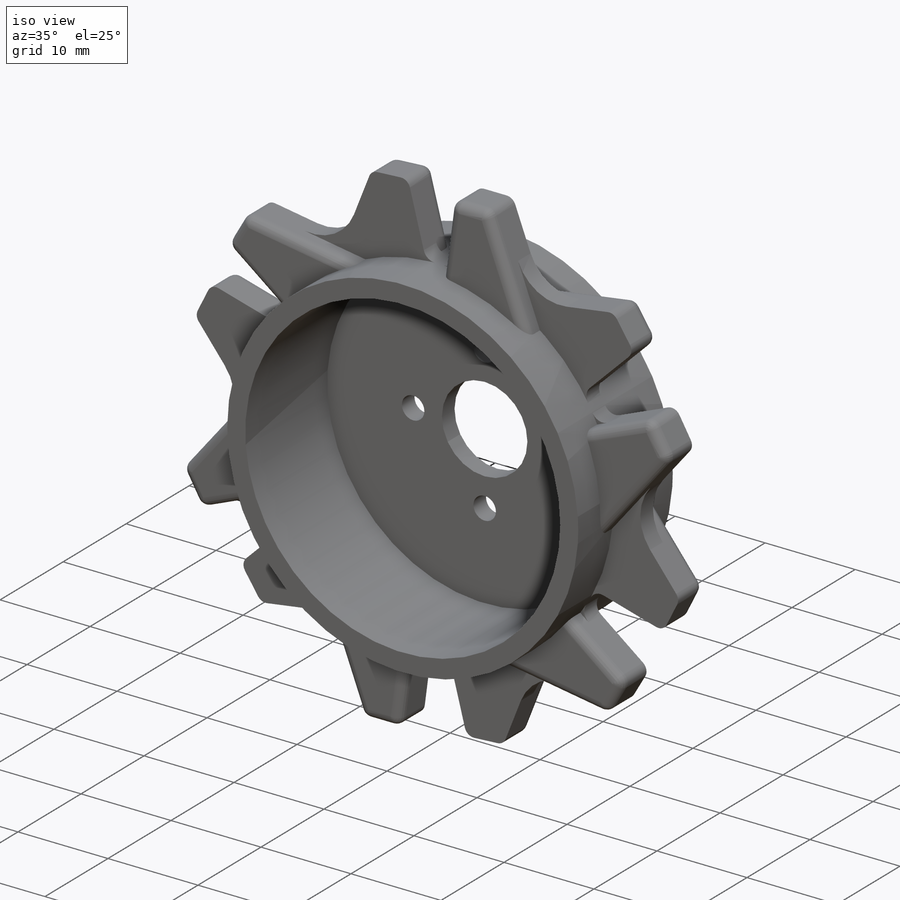
[diagram: iso view]
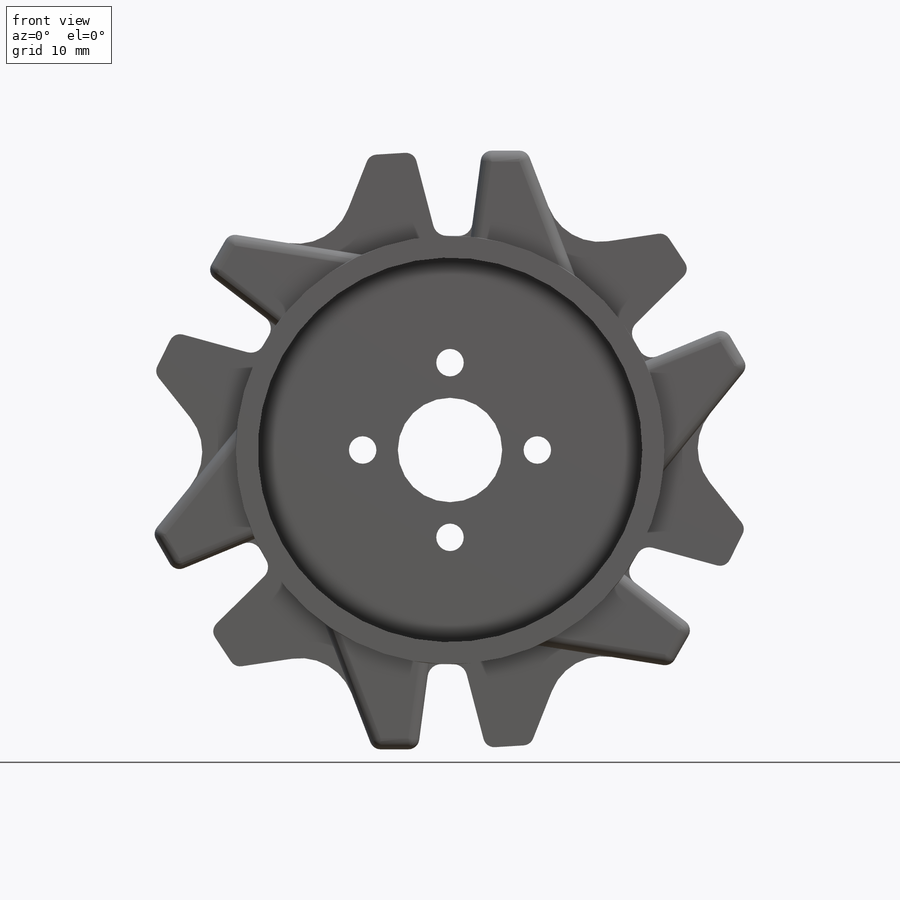
[diagram: front view]
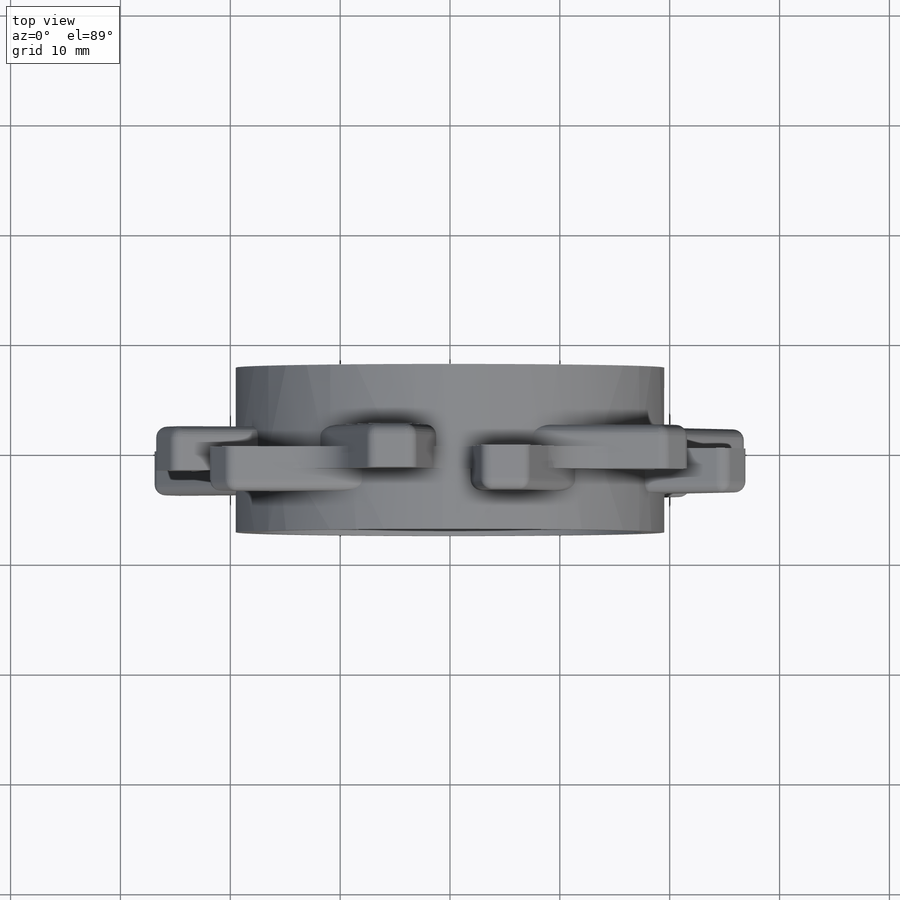
[diagram: top view]
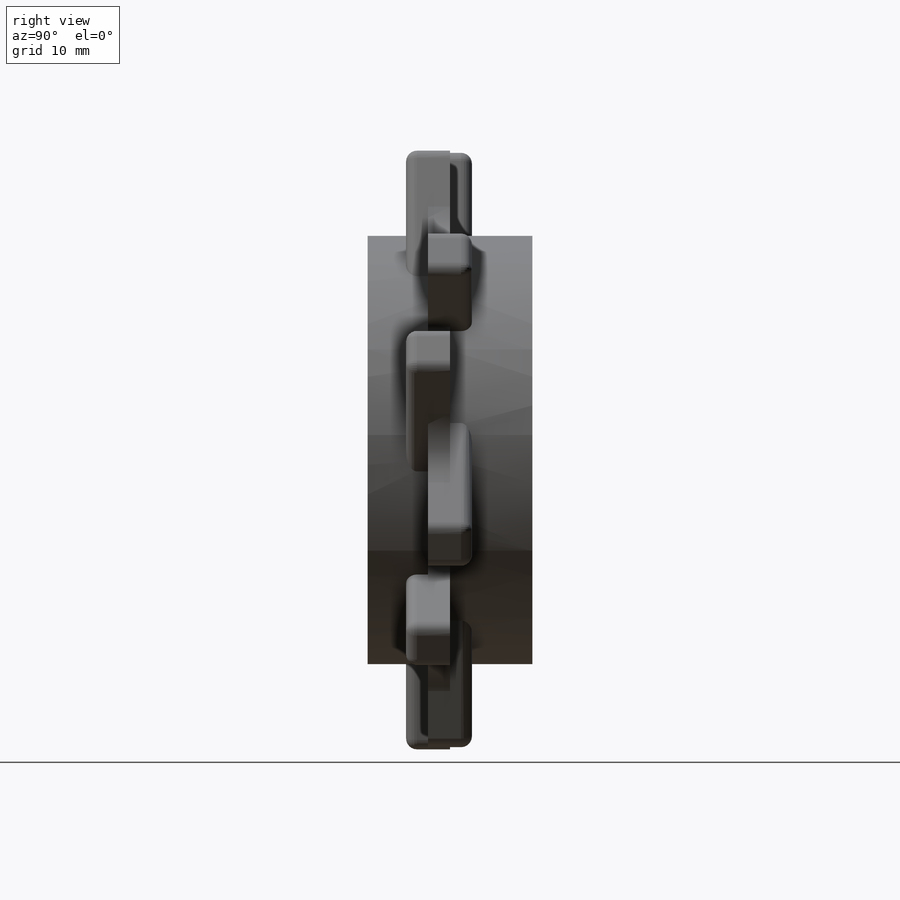
[diagram: right view]
SOLIDWORKS PART (.sldprt)
format: sldprt  version: not decoded by parser v0  size: 1,000,960 bytes
history: native  units: mm
features: sketch x11, extrude x7, fillet x6, plane x3, pattern_circular x3, cut_extrude x2, material x1, hole x1, thread x1 (+10 scaffold rows collapsed)
feature tree (45):
  scaffold x10  (default folders/planes/origin — collapsed)
  material  "Materiale <non specificato>"
  plane  "Piano frontale"
  plane  "Piano superiore"
  plane  "Piano destro"
  sketch  "Schizzo1"  dims[c1.D1=~33.363978mm c1.D3=~33.363978mm c1.D5=39.0mm c1.D2=~3.827407mm c2.D3=~10.871501mm c2.D4=~17.913077mm c2.D5=~16.681989mm c3.D3=~10.706205mm c4.D3=~10.003554deg c4.D4=~16.831221mm c5.D4=~20.014633deg c5.D5=~0.002018mm c6.D4=~16.831221mm c7.D4=~30.018187deg c7.D3=~10.873515mm c7.D5=~17.913077mm c8.D4=~3.827407mm c9.D4=~100.003554deg c9.D6=~3.827407mm c10.D6=~110.014633deg c10.D3=~15.541724mm c11.D3=~10.003554deg c11.D1=~10.873515mm c12.D3=~10.708204mm c13.D3=~10.003554deg c13.D7=~19.206617mm c14.D7=30.0deg]
  extrude  "Estrusione-Estrusione5"  Depth=15mm
  sketch  "Schizzo12"  dims[D1=27.25mm D2=27.25mm]
  extrude  "Estrusione-Estrusione9"  Depth=2mm
  fillet  "Raccordo5"  Radius=5mm
  fillet  "Raccordo6"  Radius=1.25mm
  extrude  "Estrusione-Estrusione12"  [1 undecoded]
  sketch  "Schizzo12<6>"  dims[D1=4.0mm]
  extrude  "Estrusione-Estrusione13"  [1 undecoded]
  sketch  "Schizzo12<7>"  dims[D1=2.0mm]
  fillet  "Raccordo8"  Radius=1mm
  pattern_circular  "RipetizioneCircolare5"  Count=6 Angle=60deg
  sketch  "Schizzo11"  dims[D1=~65.347821mm]
  extrude  "Estrusione-Estrusione14"  Depth=2mm
  fillet  "Raccordo9"  Radius=4.8mm
  fillet  "Raccordo12"  Radius=1mm
  extrude  "Estrusione-Estrusione15"  [1 undecoded]
  sketch  "Schizzo11<4>"  dims[D1=4.0mm]
  extrude  "Estrusione-Estrusione16"  [1 undecoded]
  sketch  "Schizzo11<5>"  dims[D1=2.0mm]
  fillet  "Raccordo11"  Radius=1mm
  pattern_circular  "RipetizioneCircolare6"  Count=9 Angle=360deg
  sketch  "Schizzo7"  dims[D1=2.0mm]
  cut_extrude  "Taglio-Estrusione1"  Depth=13mm
  sketch  "Schizzo8"  dims[D1=9.5mm]
  cut_extrude  "Taglio-Estrusione2"  [1 undecoded]
  hole  "Foro filettato M3x0.5-1"  Diameter=2.5mm Depth=2mm
  sketch  "Schizzo10"  dims[D1=7.95mm]
  sketch  "Schizzo9"  dims[hole-wizard template sketch: 60 standard entries collapsed; hole parameters kept: c18.Thru Tap Drill Depth=2.0mm]
  thread  "Filettatura del foro1"  Diameter=3mm  [1 undecoded]
  pattern_circular  "RipetizioneCircolare4"  Count=4 Angle=90deg
decode coverage: 26 of 31 modeling features carry decoded parameters
note: ~ marks probable driven/reference dimensions
note: 6 parameter values undecoded
summary: no parameter record found for 5 features
note: suppression state not decoded; provenance and decode notes live in map.json
